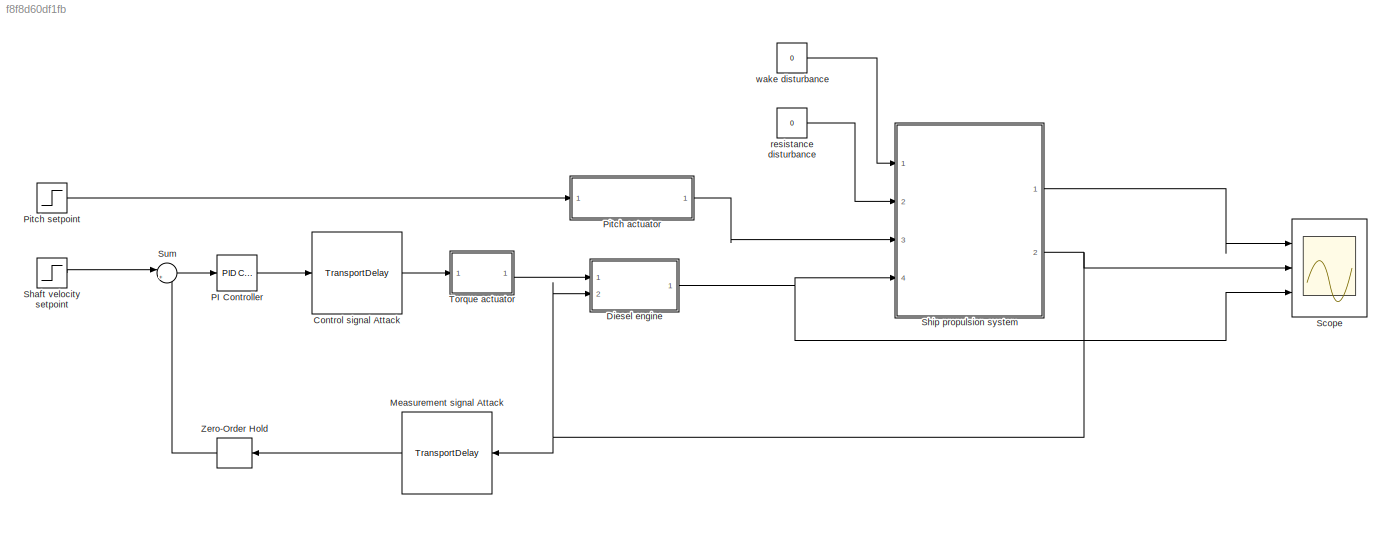
MODEL slx_f8f8d60df1fb
KIND model
CONFIG AbsTol = auto
CONFIG EnableMultiTasking = off
CONFIG FixedStep = auto
CONFIG MaxStep = auto
CONFIG MinStep = auto
CONFIG RelTol = 1e-3
CONFIG SampleTimeConstraint = Unconstrained
CONFIG Solver = VariableStepAuto
CONFIG SolverName = VariableStepAuto
CONFIG StartTime = 0.0
CONFIG StopTime = 250
BLOCK [TransportDelay] Control signal Attack
  DelayTime = 0
  Ports = [1, 1]
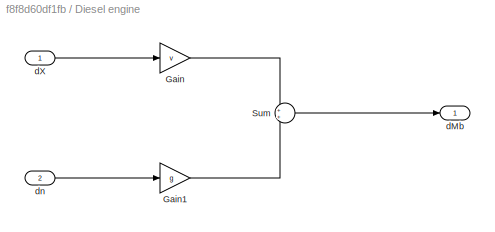
BLOCK [SubSystem] Diesel engine
  Ports = [2, 1]
  RequestExecContextInheritance = off
  Variant = off
BLOCK [Gain] Diesel engine/Gain
  Gain = v
  OutDataTypeStr = Inherit: Inherit via internal rule
  ParamDataTypeStr = Inherit: Inherit via internal rule
  SaturateOnIntegerOverflow = off
BLOCK [Gain] Diesel engine/Gain1
  Gain = g
  OutDataTypeStr = Inherit: Inherit via internal rule
  ParamDataTypeStr = Inherit: Inherit via internal rule
  SaturateOnIntegerOverflow = off
BLOCK [Sum] Diesel engine/Sum
  IconShape = round
  InputSameDT = off
  OutDataTypeStr = Inherit: Inherit via internal rule
  Ports = [2, 1]
  SaturateOnIntegerOverflow = off
BLOCK [Outport] Diesel engine/dMb
  IconDisplay = Port number
BLOCK [Inport] Diesel engine/dX
  IconDisplay = Port number
BLOCK [Inport] Diesel engine/dn
  IconDisplay = Port number
  Port = 2
BLOCK [TransportDelay] Measurement signal Attack
  DelayTime = [0 5]
  Ports = [1, 1]
BLOCK [Reference] PI Controller  REF=simulink/Continuous/PID Controller
  Ports = [1, 1]
  SourceBlock = simulink/Continuous/PID Controller
  SourceType = PID 1dof
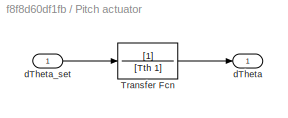
BLOCK [SubSystem] Pitch actuator
  Ports = [1, 1]
  RequestExecContextInheritance = off
  Variant = off
BLOCK [TransferFcn] Pitch actuator/Transfer Fcn
  Denominator = [Tth 1]
BLOCK [Outport] Pitch actuator/dTheta
  IconDisplay = Port number
BLOCK [Inport] Pitch actuator/dTheta_set
  IconDisplay = Port number
BLOCK [Step] Pitch setpoint
  After = -0.05
  SampleTime = 0
  Time = 150
BLOCK [Scope] Scope
  NumInputPorts = 3
  Ports = [3]
  ScopeSpecificationString = Simulink.scopes.TimeScopeBlockCfg('CurrentConfiguration', extmgr.ConfigurationSet(extmgr.Configuration('Core','General UI',true),extmgr.Configuration('Core','Source UI',true),extmgr.Configuration('Sources','WiredSimulink',true),extmgr.Configuration('Visuals','Time Domain',true,'SerializedDisplays',{struct('MinYLimReal','-0.45768','MaxYLimReal','0.66834','YLabelReal','','MinYLimMag','0.00000','MaxY...<+2803ch>
BLOCK [Step] Shaft velocity setpoint
  After = 0.1
  SampleTime = 0
  Time = 100
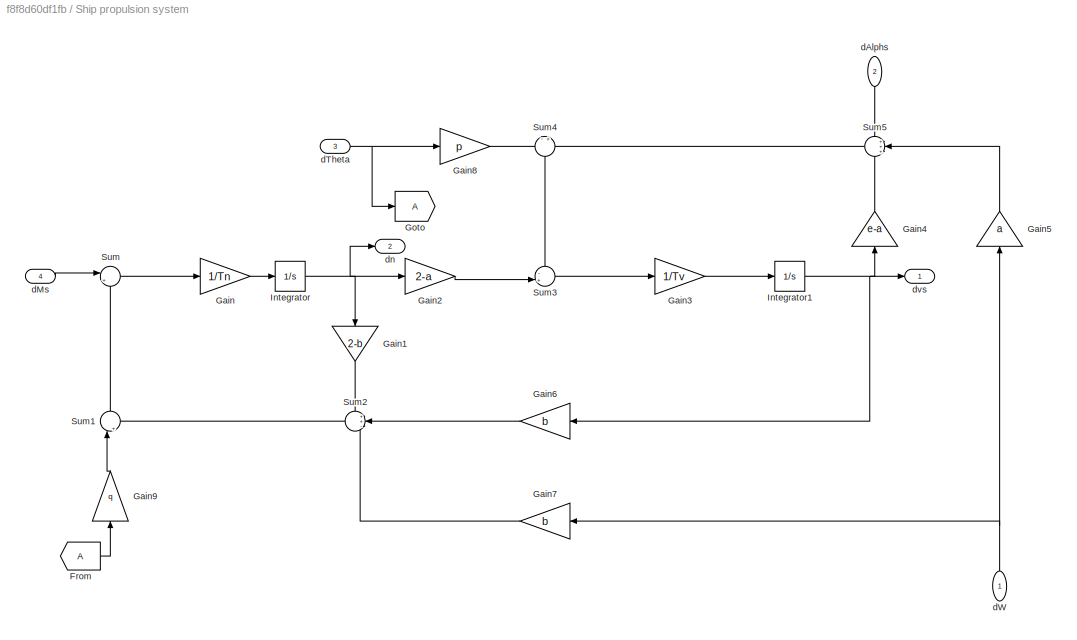
BLOCK [SubSystem] Ship propulsion system
  Ports = [4, 2]
  RequestExecContextInheritance = off
  Variant = off
BLOCK [From] Ship propulsion system/From
BLOCK [Gain] Ship propulsion system/Gain
  Gain = 1/Tn
  OutDataTypeStr = Inherit: Inherit via internal rule
  ParamDataTypeStr = Inherit: Inherit via internal rule
  SaturateOnIntegerOverflow = off
BLOCK [Gain] Ship propulsion system/Gain1
  Gain = 2-b
  OutDataTypeStr = Inherit: Inherit via internal rule
  ParamDataTypeStr = Inherit: Inherit via internal rule
  SaturateOnIntegerOverflow = off
BLOCK [Gain] Ship propulsion system/Gain2
  Gain = 2-a
  OutDataTypeStr = Inherit: Inherit via internal rule
  ParamDataTypeStr = Inherit: Inherit via internal rule
  SaturateOnIntegerOverflow = off
BLOCK [Gain] Ship propulsion system/Gain3
  Gain = 1/Tv
  OutDataTypeStr = Inherit: Inherit via internal rule
  ParamDataTypeStr = Inherit: Inherit via internal rule
  SaturateOnIntegerOverflow = off
BLOCK [Gain] Ship propulsion system/Gain4
  Gain = e-a
  OutDataTypeStr = Inherit: Inherit via internal rule
  ParamDataTypeStr = Inherit: Inherit via internal rule
  SaturateOnIntegerOverflow = off
BLOCK [Gain] Ship propulsion system/Gain5
  Gain = a
  OutDataTypeStr = Inherit: Inherit via internal rule
  ParamDataTypeStr = Inherit: Inherit via internal rule
  SaturateOnIntegerOverflow = off
BLOCK [Gain] Ship propulsion system/Gain6
  Gain = b
  OutDataTypeStr = Inherit: Inherit via internal rule
  ParamDataTypeStr = Inherit: Inherit via internal rule
  SaturateOnIntegerOverflow = off
BLOCK [Gain] Ship propulsion system/Gain7
  Gain = b
  OutDataTypeStr = Inherit: Inherit via internal rule
  ParamDataTypeStr = Inherit: Inherit via internal rule
  SaturateOnIntegerOverflow = off
BLOCK [Gain] Ship propulsion system/Gain8
  Gain = p
  OutDataTypeStr = Inherit: Inherit via internal rule
  ParamDataTypeStr = Inherit: Inherit via internal rule
  SaturateOnIntegerOverflow = off
BLOCK [Gain] Ship propulsion system/Gain9
  Gain = q
  OutDataTypeStr = Inherit: Inherit via internal rule
  ParamDataTypeStr = Inherit: Inherit via internal rule
  SaturateOnIntegerOverflow = off
BLOCK [Goto] Ship propulsion system/Goto
BLOCK [Integrator] Ship propulsion system/Integrator
  Ports = [1, 1]
BLOCK [Integrator] Ship propulsion system/Integrator1
  Ports = [1, 1]
BLOCK [Sum] Ship propulsion system/Sum
  IconShape = round
  InputSameDT = off
  Inputs = |+-
  OutDataTypeStr = Inherit: Inherit via internal rule
  Ports = [2, 1]
  SaturateOnIntegerOverflow = off
BLOCK [Sum] Ship propulsion system/Sum1
  IconShape = round
  InputSameDT = off
  Inputs = |++
  OutDataTypeStr = Inherit: Inherit via internal rule
  Ports = [2, 1]
  SaturateOnIntegerOverflow = off
BLOCK [Sum] Ship propulsion system/Sum2
  IconShape = round
  InputSameDT = off
  Inputs = ++-
  OutDataTypeStr = Inherit: Inherit via internal rule
  Ports = [3, 1]
  SaturateOnIntegerOverflow = off
BLOCK [Sum] Ship propulsion system/Sum3
  IconShape = round
  InputSameDT = off
  Inputs = -+|
  OutDataTypeStr = Inherit: Inherit via internal rule
  Ports = [2, 1]
  SaturateOnIntegerOverflow = off
BLOCK [Sum] Ship propulsion system/Sum4
  IconShape = round
  InputSameDT = off
  Inputs = -+
  OutDataTypeStr = Inherit: Inherit via internal rule
  Ports = [2, 1]
  SaturateOnIntegerOverflow = off
BLOCK [Sum] Ship propulsion system/Sum5
  IconShape = round
  InputSameDT = off
  Inputs = +++
  OutDataTypeStr = Inherit: Inherit via internal rule
  Ports = [3, 1]
  SaturateOnIntegerOverflow = off
BLOCK [Inport] Ship propulsion system/dAlphs
  IconDisplay = Port number
  Port = 2
BLOCK [Inport] Ship propulsion system/dMs
  IconDisplay = Port number
  Port = 4
BLOCK [Inport] Ship propulsion system/dTheta
  IconDisplay = Port number
  Port = 3
BLOCK [Inport] Ship propulsion system/dW
  IconDisplay = Port number
BLOCK [Outport] Ship propulsion system/dn
  IconDisplay = Port number
  Port = 2
BLOCK [Outport] Ship propulsion system/dvs
  IconDisplay = Port number
BLOCK [Sum] Sum
  IconShape = round
  InputSameDT = off
  Inputs = |+-
  OutDataTypeStr = Inherit: Inherit via internal rule
  Ports = [2, 1]
  SaturateOnIntegerOverflow = off
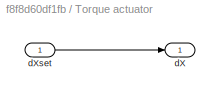
BLOCK [SubSystem] Torque actuator
  Ports = [1, 1]
  RequestExecContextInheritance = off
  Variant = off
BLOCK [Outport] Torque actuator/dX
  IconDisplay = Port number
BLOCK [Inport] Torque actuator/dXset
  IconDisplay = Port number
BLOCK [ZeroOrderHold] Zero-Order Hold
BLOCK [Constant] resistance disturbance
  Value = 0
BLOCK [Constant] wake disturbance
  Value = 0
LINE Control signal Attack:1 -> Torque actuator:1
LINE Diesel engine/Gain1:1 -> Diesel engine/Sum:2
LINE Diesel engine/Gain:1 -> Diesel engine/Sum:1
LINE Diesel engine/Sum:1 -> Diesel engine/dMb:1
LINE Diesel engine/dX:1 -> Diesel engine/Gain:1
LINE Diesel engine/dn:1 -> Diesel engine/Gain1:1
NET Diesel engine:1 -> Scope:3, Ship propulsion system:4
LINE Measurement signal Attack:1 -> Zero-Order Hold:1
LINE PI Controller:1 -> Control signal Attack:1
LINE Pitch actuator/Transfer Fcn:1 -> Pitch actuator/dTheta:1
LINE Pitch actuator/dTheta_set:1 -> Pitch actuator/Transfer Fcn:1
LINE Pitch actuator:1 -> Ship propulsion system:3
LINE Pitch setpoint:1 -> Pitch actuator:1
LINE Shaft velocity setpoint:1 -> Sum:1
LINE Ship propulsion system/From:1 -> Ship propulsion system/Gain9:1
LINE Ship propulsion system/Gain1:1 -> Ship propulsion system/Sum2:1
LINE Ship propulsion system/Gain2:1 -> Ship propulsion system/Sum3:2
LINE Ship propulsion system/Gain3:1 -> Ship propulsion system/Integrator1:1
LINE Ship propulsion system/Gain4:1 -> Ship propulsion system/Sum5:3
LINE Ship propulsion system/Gain5:1 -> Ship propulsion system/Sum5:2
LINE Ship propulsion system/Gain6:1 -> Ship propulsion system/Sum2:2
LINE Ship propulsion system/Gain7:1 -> Ship propulsion system/Sum2:3
LINE Ship propulsion system/Gain8:1 -> Ship propulsion system/Sum4:1
LINE Ship propulsion system/Gain9:1 -> Ship propulsion system/Sum1:1
LINE Ship propulsion system/Gain:1 -> Ship propulsion system/Integrator:1
NET Ship propulsion system/Integrator1:1 -> Ship propulsion system/Gain4:1, Ship propulsion system/Gain6:1, Ship propulsion system/dvs:1
NET Ship propulsion system/Integrator:1 -> Ship propulsion system/Gain1:1, Ship propulsion system/Gain2:1, Ship propulsion system/dn:1
LINE Ship propulsion system/Sum1:1 -> Ship propulsion system/Sum:2
LINE Ship propulsion system/Sum2:1 -> Ship propulsion system/Sum1:2
LINE Ship propulsion system/Sum3:1 -> Ship propulsion system/Gain3:1
LINE Ship propulsion system/Sum4:1 -> Ship propulsion system/Sum3:1
LINE Ship propulsion system/Sum5:1 -> Ship propulsion system/Sum4:2
LINE Ship propulsion system/Sum:1 -> Ship propulsion system/Gain:1
LINE Ship propulsion system/dAlphs:1 -> Ship propulsion system/Sum5:1
LINE Ship propulsion system/dMs:1 -> Ship propulsion system/Sum:1
NET Ship propulsion system/dTheta:1 -> Ship propulsion system/Gain8:1, Ship propulsion system/Goto:1
NET Ship propulsion system/dW:1 -> Ship propulsion system/Gain5:1, Ship propulsion system/Gain7:1
LINE Ship propulsion system:1 -> Scope:1
NET Ship propulsion system:2 -> Diesel engine:2, Measurement signal Attack:1, Scope:2
LINE Sum:1 -> PI Controller:1
LINE Torque actuator/dXset:1 -> Torque actuator/dX:1
LINE Torque actuator:1 -> Diesel engine:1
LINE Zero-Order Hold:1 -> Sum:2
LINE resistance disturbance:1 -> Ship propulsion system:2
LINE wake disturbance:1 -> Ship propulsion system:1
note: NET lines group one-source signal fan-out (src -> all destinations, sorted); 1:1 wires keep LINE
